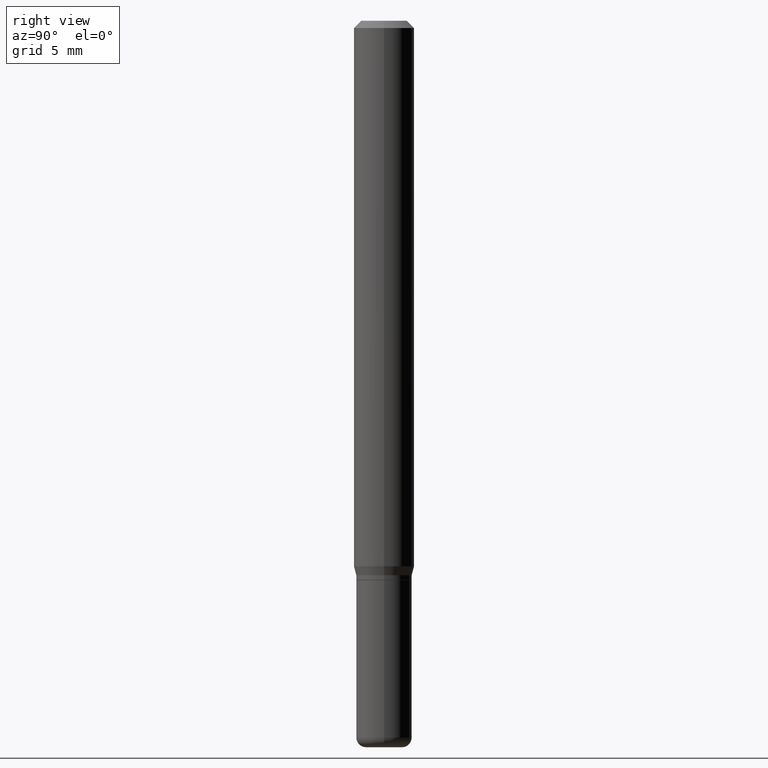
[diagram: clean part render]
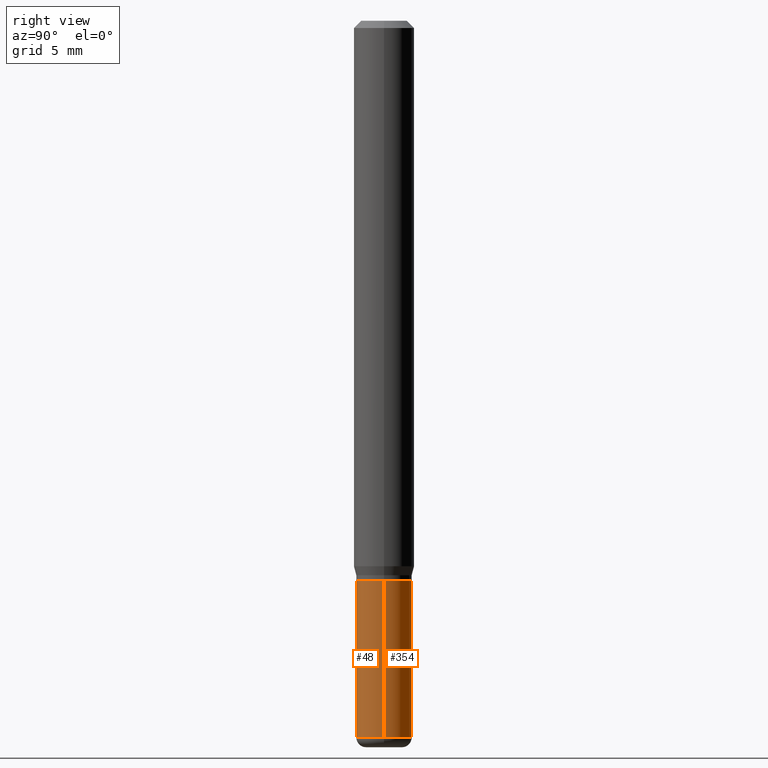
[diagram: same view with one multi-face feature highlighted, each face labeled with its STEP entity id]
A machine part, right view. The highlighted faces form ONE feature: a constant-radius fillet chain: 2 tangent blend faces with common blend radius 1.4605 mm. The faces share edges in the B-rep.
Their STEP definitions:
[1] entity #354 (Cylinder):
#9 = LINE ( 'NONE', #285, #69 ) ;
#17 = DIRECTION ( 'NONE',  ( -2.445468806185136597E-29, 3.491481338843145583E-15, 1.000000000000000000 ) ) ;
#22 = CARTESIAN_POINT ( 'NONE',  ( 0.05750000000000003025, -5.568912735454815688E-15, -1.479999999999999982 ) ) ;
#24 = FACE_OUTER_BOUND ( 'NONE', #152, .T. ) ;
#52 = VECTOR ( 'NONE', #252, 39.37007874015748143 ) ;
#67 = EDGE_CURVE ( 'NONE', #144, #397, #9, .T. ) ;
#69 = VECTOR ( 'NONE', #409, 39.37007874015748143 ) ;
#85 = ORIENTED_EDGE ( 'NONE', *, *, #148, .F. ) ;
#96 = LINE ( 'NONE', #363, #52 ) ;
#124 = AXIS2_PLACEMENT_3D ( 'NONE', #185, #17, #181 ) ;
#136 = DIRECTION ( 'NONE',  ( 1.000000000000000000, -6.982962677686273810E-15, 0.000000000000000000 ) ) ;
#140 = AXIS2_PLACEMENT_3D ( 'NONE', #459, #301, #264 ) ;
#144 = VERTEX_POINT ( 'NONE', #331 ) ;
#148 = EDGE_CURVE ( 'NONE', #358, #397, #236, .T. ) ;
#152 = EDGE_LOOP ( 'NONE', ( #196, #296, #85, #318 ) ) ;
#176 = CARTESIAN_POINT ( 'NONE',  ( 2.824516471143833307E-29, -4.032660946363833383E-15, -1.155000000000000027 ) ) ;
#181 = DIRECTION ( 'NONE',  ( 1.000000000000000000, -6.982962677686270655E-15, 0.000000000000000000 ) ) ;
#185 = CARTESIAN_POINT ( 'NONE',  ( 3.619293833154002365E-29, -5.167392381487854879E-15, -1.479999999999999982 ) ) ;
#193 = EDGE_CURVE ( 'NONE', #276, #358, #96, .T. ) ;
#196 = ORIENTED_EDGE ( 'NONE', *, *, #260, .T. ) ;
#236 = CIRCLE ( 'NONE', #435, 0.05750000000000000250 ) ;
#252 = DIRECTION ( 'NONE',  ( -2.445468806185136877E-29, 3.491481338843145188E-15, 1.000000000000000000 ) ) ;
#258 = CYLINDRICAL_SURFACE ( 'NONE', #140, 0.05750000000000001638 ) ;
#260 = EDGE_CURVE ( 'NONE', #276, #144, #300, .T. ) ;
#264 = DIRECTION ( 'NONE',  ( 1.000000000000000000, -6.982962677686265922E-15, 4.876176775795935793E-29 ) ) ;
#269 = CARTESIAN_POINT ( 'NONE',  ( -0.05750000000000000250, -4.191464590863786555E-15, -1.155000000000000027 ) ) ;
#276 = VERTEX_POINT ( 'NONE', #22 ) ;
#282 = DIRECTION ( 'NONE',  ( -2.445468806185136597E-29, 3.491481338843145583E-15, 1.000000000000000000 ) ) ;
#285 = CARTESIAN_POINT ( 'NONE',  ( -0.05750000000000001638, 4.085620730620577232E-16, -2.828387676896571763E-30 ) ) ;
#296 = ORIENTED_EDGE ( 'NONE', *, *, #67, .T. ) ;
#300 = CIRCLE ( 'NONE', #124, 0.05750000000000003025 ) ;
#301 = DIRECTION ( 'NONE',  ( -2.445468806185136597E-29, 3.491481338843145583E-15, 1.000000000000000000 ) ) ;
#318 = ORIENTED_EDGE ( 'NONE', *, *, #193, .F. ) ;
#331 = CARTESIAN_POINT ( 'NONE',  ( -0.05750000000000003025, -4.191464590863786555E-15, -1.479999999999999982 ) ) ;
#354 = ADVANCED_FACE ( 'NONE', ( #24 ), #258, .T. ) ;
#358 = VERTEX_POINT ( 'NONE', #464 ) ;
#363 = CARTESIAN_POINT ( 'NONE',  ( 0.05750000000000001638, -4.015203539669604147E-16, 2.803801646082663992E-30 ) ) ;
#397 = VERTEX_POINT ( 'NONE', #269 ) ;
#409 = DIRECTION ( 'NONE',  ( -2.445468806185136877E-29, 3.491481338843145188E-15, 1.000000000000000000 ) ) ;
#435 = AXIS2_PLACEMENT_3D ( 'NONE', #176, #282, #136 ) ;
#459 = CARTESIAN_POINT ( 'NONE',  ( 0.000000000000000000, 0.000000000000000000, 0.000000000000000000 ) ) ;
#464 = CARTESIAN_POINT ( 'NONE',  ( 0.05750000000000000250, -4.434181300330794192E-15, -1.155000000000000027 ) ) ;
[2] entity #48 (Cylinder):
#7 = CYLINDRICAL_SURFACE ( 'NONE', #10, 0.05750000000000001638 ) ;
#9 = LINE ( 'NONE', #285, #69 ) ;
#10 = AXIS2_PLACEMENT_3D ( 'NONE', #324, #216, #243 ) ;
#22 = CARTESIAN_POINT ( 'NONE',  ( 0.05750000000000003025, -5.568912735454815688E-15, -1.479999999999999982 ) ) ;
#48 = ADVANCED_FACE ( 'NONE', ( #83 ), #7, .T. ) ;
#52 = VECTOR ( 'NONE', #252, 39.37007874015748143 ) ;
#67 = EDGE_CURVE ( 'NONE', #144, #397, #9, .T. ) ;
#69 = VECTOR ( 'NONE', #409, 39.37007874015748143 ) ;
#83 = FACE_OUTER_BOUND ( 'NONE', #278, .T. ) ;
#96 = LINE ( 'NONE', #363, #52 ) ;
#101 = DIRECTION ( 'NONE',  ( -2.445468806185136597E-29, 3.491481338843145583E-15, 1.000000000000000000 ) ) ;
#144 = VERTEX_POINT ( 'NONE', #331 ) ;
#145 = CARTESIAN_POINT ( 'NONE',  ( 3.619293833154002365E-29, -5.167392381487854879E-15, -1.479999999999999982 ) ) ;
#161 = ORIENTED_EDGE ( 'NONE', *, *, #304, .F. ) ;
#165 = CIRCLE ( 'NONE', #410, 0.05750000000000000250 ) ;
#180 = CIRCLE ( 'NONE', #384, 0.05750000000000003025 ) ;
#189 = ORIENTED_EDGE ( 'NONE', *, *, #193, .T. ) ;
#193 = EDGE_CURVE ( 'NONE', #276, #358, #96, .T. ) ;
#216 = DIRECTION ( 'NONE',  ( -2.445468806185136597E-29, 3.491481338843145583E-15, 1.000000000000000000 ) ) ;
#220 = DIRECTION ( 'NONE',  ( 1.000000000000000000, -6.982962677686270655E-15, 0.000000000000000000 ) ) ;
#243 = DIRECTION ( 'NONE',  ( 1.000000000000000000, -6.982962677686265922E-15, 4.876176775795935793E-29 ) ) ;
#252 = DIRECTION ( 'NONE',  ( -2.445468806185136877E-29, 3.491481338843145188E-15, 1.000000000000000000 ) ) ;
#269 = CARTESIAN_POINT ( 'NONE',  ( -0.05750000000000000250, -4.191464590863786555E-15, -1.155000000000000027 ) ) ;
#276 = VERTEX_POINT ( 'NONE', #22 ) ;
#278 = EDGE_LOOP ( 'NONE', ( #337, #466, #189, #161 ) ) ;
#285 = CARTESIAN_POINT ( 'NONE',  ( -0.05750000000000001638, 4.085620730620577232E-16, -2.828387676896571763E-30 ) ) ;
#294 = DIRECTION ( 'NONE',  ( 1.000000000000000000, -6.982962677686273810E-15, 0.000000000000000000 ) ) ;
#304 = EDGE_CURVE ( 'NONE', #397, #358, #165, .T. ) ;
#324 = CARTESIAN_POINT ( 'NONE',  ( 0.000000000000000000, 0.000000000000000000, 0.000000000000000000 ) ) ;
#331 = CARTESIAN_POINT ( 'NONE',  ( -0.05750000000000003025, -4.191464590863786555E-15, -1.479999999999999982 ) ) ;
#337 = ORIENTED_EDGE ( 'NONE', *, *, #67, .F. ) ;
#341 = CARTESIAN_POINT ( 'NONE',  ( 2.824516471143833307E-29, -4.032660946363833383E-15, -1.155000000000000027 ) ) ;
#344 = DIRECTION ( 'NONE',  ( -2.445468806185136597E-29, 3.491481338843145583E-15, 1.000000000000000000 ) ) ;
#345 = EDGE_CURVE ( 'NONE', #144, #276, #180, .T. ) ;
#358 = VERTEX_POINT ( 'NONE', #464 ) ;
#363 = CARTESIAN_POINT ( 'NONE',  ( 0.05750000000000001638, -4.015203539669604147E-16, 2.803801646082663992E-30 ) ) ;
#384 = AXIS2_PLACEMENT_3D ( 'NONE', #145, #344, #220 ) ;
#397 = VERTEX_POINT ( 'NONE', #269 ) ;
#409 = DIRECTION ( 'NONE',  ( -2.445468806185136877E-29, 3.491481338843145188E-15, 1.000000000000000000 ) ) ;
#410 = AXIS2_PLACEMENT_3D ( 'NONE', #341, #101, #294 ) ;
#464 = CARTESIAN_POINT ( 'NONE',  ( 0.05750000000000000250, -4.434181300330794192E-15, -1.155000000000000027 ) ) ;
#466 = ORIENTED_EDGE ( 'NONE', *, *, #345, .T. ) ;